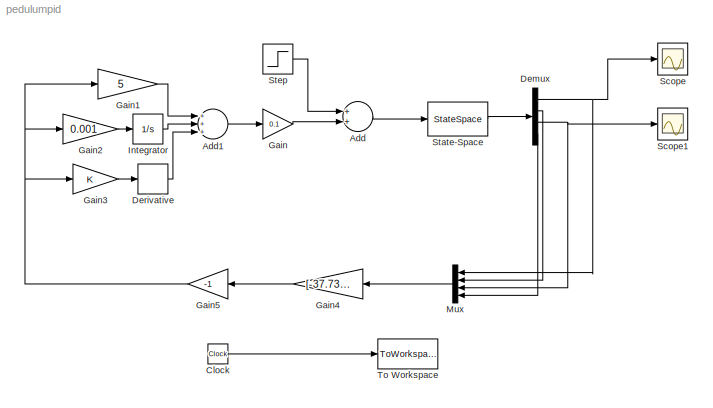
MODEL pedulumpid
KIND model
BLOCK [Sum] Add
  InputSameDT = off
  OutDataTypeStr = Inherit: Inherit via internal rule
  Ports = [2, 1]
  SID = 1
  SaturateOnIntegerOverflow = off
BLOCK [Sum] Add1
  InputSameDT = off
  Inputs = +++
  OutDataTypeStr = Inherit: Inherit via internal rule
  Ports = [3, 1]
  SID = 2
  SaturateOnIntegerOverflow = off
BLOCK [Clock] Clock
  SID = 20
BLOCK [Demux] Demux
  DisplayOption = bar
  Ports = [1, 4]
  SID = 3
BLOCK [Derivative] Derivative
  SID = 4
BLOCK [Gain] Gain
  Gain = 0.1
  OutDataTypeStr = Inherit: Inherit via internal rule
  ParamDataTypeStr = Inherit: Inherit via internal rule
  SID = 5
  SaturateOnIntegerOverflow = off
BLOCK [Gain] Gain1
  Gain = 5
  OutDataTypeStr = Inherit: Inherit via internal rule
  ParamDataTypeStr = Inherit: Inherit via internal rule
  SID = 6
  SaturateOnIntegerOverflow = off
BLOCK [Gain] Gain2
  Gain = 0.001
  OutDataTypeStr = Inherit: Inherit via internal rule
  ParamDataTypeStr = Inherit: Inherit via internal rule
  SID = 7
  SaturateOnIntegerOverflow = off
BLOCK [Gain] Gain3
  OutDataTypeStr = Inherit: Inherit via internal rule
  ParamDataTypeStr = Inherit: Inherit via internal rule
  SID = 8
  SaturateOnIntegerOverflow = off
BLOCK [Gain] Gain4
  Gain = [-37.7301248571561,-6.11083393673725,-4.90186428572187,-6.44895275510788]
  Multiplication = Matrix(K*u)
  OutDataTypeStr = Inherit: Inherit via internal rule
  ParamDataTypeStr = Inherit: Inherit via internal rule
  SID = 9
  SaturateOnIntegerOverflow = off
BLOCK [Gain] Gain5
  Gain = -1
  OutDataTypeStr = Inherit: Inherit via internal rule
  ParamDataTypeStr = Inherit: Inherit via internal rule
  SID = 10
  SaturateOnIntegerOverflow = off
BLOCK [Integrator] Integrator
  Ports = [1, 1]
  SID = 11
BLOCK [Mux] Mux
  DisplayOption = bar
  Ports = [4, 1]
  SID = 12
BLOCK [Scope] Scope
  DataFormat = StructureWithTime
  Floating = off
  NumInputPorts = 1
  Ports = [1]
  SID = 13
  SampleTime = 0
  ShowLegends = off
  TimeRange = 10
  YMax = 1.5e+25
  YMin = 0
  ZoomMode = yonly
BLOCK [Scope] Scope1
  DataFormat = StructureWithTime
  Floating = off
  NumInputPorts = 1
  Ports = [1]
  SID = 14
  SampleTime = 0
  SaveName = ScopeData1
  ShowLegends = off
BLOCK [StateSpace] State-Space
  A = [0,1,0,0;51.5789473684211,0,0,0.526315789473684;0,0,0,1;-7.73684210526316,0,0,-0.178947368421053]
  B = [0;-5.26315789473684;0;1.78947368421053]
  C = [1 0 0 0;0 1 0 0;0 0 1 0;0 0 0 1]
  D = [0;0;0;0]
  SID = 15
BLOCK [Step] Step
  After = 0.25
  SID = 16
  SampleTime = 0
  Time = 0
BLOCK [ToWorkspace] To Workspace
  MaxDataPoints = inf
  Ports = [1]
  SID = 22
  SampleTime = -1
  VariableName = t
LINE Add1:1 -> Gain:1
LINE Add:1 -> State-Space:1
LINE Clock:1 -> To Workspace:1
NET Demux:1 -> Mux:1, Scope:1
LINE Demux:2 -> Mux:2
NET Demux:3 -> Mux:3, Scope1:1
LINE Demux:4 -> Mux:4
LINE Derivative:1 -> Add1:3
LINE Gain1:1 -> Add1:1
LINE Gain2:1 -> Integrator:1
LINE Gain3:1 -> Derivative:1
LINE Gain4:1 -> Gain5:1
NET Gain5:1 -> Gain1:1, Gain2:1, Gain3:1
LINE Gain:1 -> Add:2
LINE Integrator:1 -> Add1:2
LINE Mux:1 -> Gain4:1
LINE State-Space:1 -> Demux:1
LINE Step:1 -> Add:1
note: NET lines group one-source signal fan-out (src -> all destinations, sorted); 1:1 wires keep LINE
